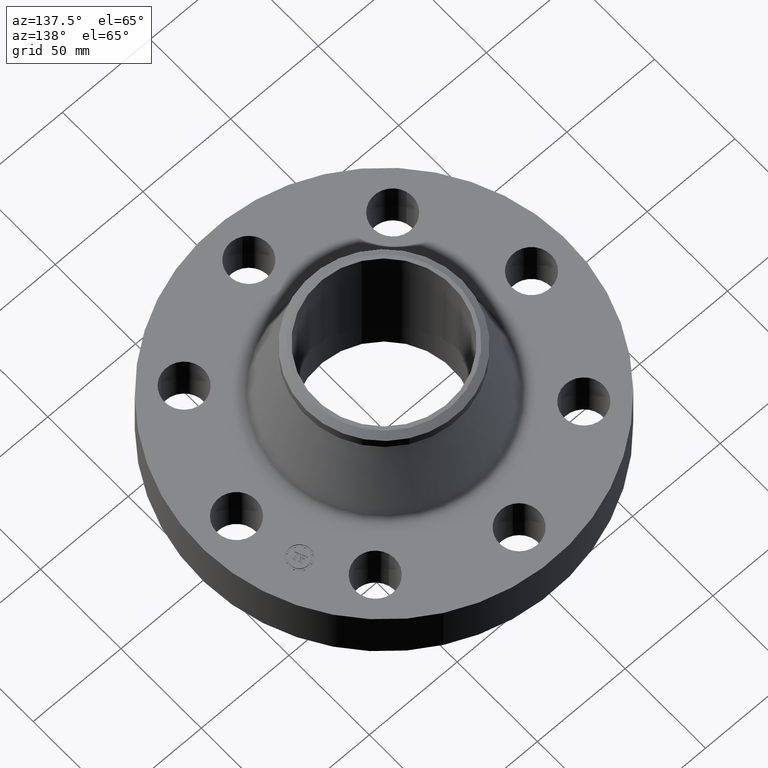
[diagram: clean part render]
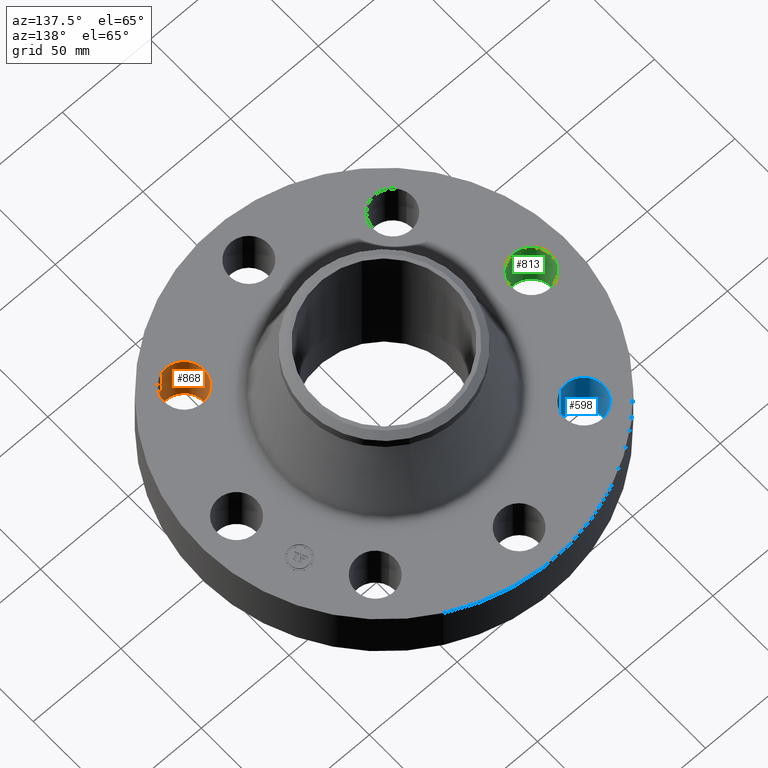
[diagram: same view with three faces highlighted in distinct colors, each labeled with its STEP entity id]
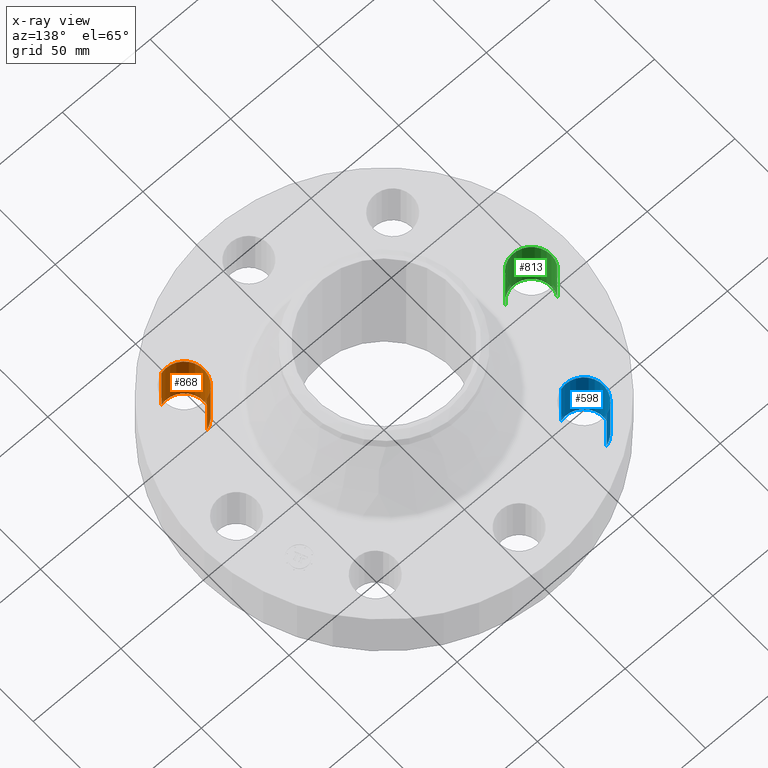
[diagram: x-ray of the same camera — body ghosted, the three highlighted faces saturated]
A machine part, auxiliary view with three faces highlighted in distinct colors.
The next image is the same camera in x-ray (body ghosted, the three faces saturated) — at least one of them is partly hidden behind the body in this view.
Their STEP definitions:

[orange] entity #868 — the highlighted cylindrical surface (edge-blend (fillet) strip) has radius 11.176 mm, axis along (0, -0, -1).
#452=AXIS2_PLACEMENT_3D('Circle Axis2P3D',#450,#451,$) ;
#829=AXIS2_PLACEMENT_3D('Cylinder Axis2P3D',#826,#827,#828) ;
#859=AXIS2_PLACEMENT_3D('Circle Axis2P3D',#857,#858,$) ;
#445=CARTESIAN_POINT('Vertex',(2.21664605203,-1.91832160854,0.)) ;
#447=CARTESIAN_POINT('Vertex',(2.46440083944,-2.76272528293,0.)) ;
#450=CARTESIAN_POINT('Axis2P3D Location',(2.34052344574,-2.34052344574,0.)) ;
#826=CARTESIAN_POINT('Axis2P3D Location',(2.34052344574,-2.34052344574,1.24606299213)) ;
#831=CARTESIAN_POINT('Line Origine',(2.21664605203,-1.91832160854,0.625000000003)) ;
#835=CARTESIAN_POINT('Vertex',(2.21664605203,-1.91832160854,1.25000000001)) ;
#838=CARTESIAN_POINT('Line Origine',(2.46440083944,-2.76272528293,0.625000000003)) ;
#842=CARTESIAN_POINT('Vertex',(2.46440083944,-2.76272528293,1.25000000001)) ;
#857=CARTESIAN_POINT('Axis2P3D Location',(2.34052344574,-2.34052344574,1.25000000001)) ;
#451=DIRECTION('Axis2P3D Direction',(0.,0.,-0.0393700787402)) ;
#827=DIRECTION('Axis2P3D Direction',(0.,-0.,-0.0393700787402)) ;
#828=DIRECTION('Axis2P3D XDirection',(0.0110842335096,-0.0377775444876,0.)) ;
#832=DIRECTION('Vector Direction',(0.,0.,-0.0393700787402)) ;
#839=DIRECTION('Vector Direction',(0.,0.,-0.0393700787402)) ;
#858=DIRECTION('Axis2P3D Direction',(0.,-0.,-0.0393700787402)) ;
#833=VECTOR('Line Direction',#832,0.0393700787402) ;
#840=VECTOR('Line Direction',#839,0.0393700787402) ;
#863=ORIENTED_EDGE('',*,*,#844,.F.) ;
#864=ORIENTED_EDGE('',*,*,#454,.T.) ;
#865=ORIENTED_EDGE('',*,*,#837,.T.) ;
#866=ORIENTED_EDGE('',*,*,#861,.F.) ;
#868=ADVANCED_FACE('PartBody',(#867),#830,.F.) ;
#453=CIRCLE('generated circle',#452,0.440000000002) ;
#860=CIRCLE('generated circle',#859,0.440000000002) ;
#830=CYLINDRICAL_SURFACE('generated cylinder',#829,0.440000000002) ;
#454=EDGE_CURVE('',#448,#446,#453,.T.) ;
#837=EDGE_CURVE('',#446,#836,#834,.F.) ;
#844=EDGE_CURVE('',#448,#843,#841,.F.) ;
#861=EDGE_CURVE('',#843,#836,#860,.T.) ;
#862=EDGE_LOOP('',(#863,#864,#865,#866)) ;
#867=FACE_OUTER_BOUND('',#862,.T.) ;
#834=LINE('Line',#831,#833) ;
#841=LINE('Line',#838,#840) ;
#446=VERTEX_POINT('',#445) ;
#448=VERTEX_POINT('',#447) ;
#836=VERTEX_POINT('',#835) ;
#843=VERTEX_POINT('',#842) ;

[blue] entity #598 — the highlighted cylindrical surface (edge-blend (fillet) strip) has radius 11.176 mm, axis along (0, 0, -1).
#515=AXIS2_PLACEMENT_3D('Circle Axis2P3D',#513,#514,$) ;
#571=AXIS2_PLACEMENT_3D('Cylinder Axis2P3D',#568,#569,#570) ;
#589=AXIS2_PLACEMENT_3D('Circle Axis2P3D',#587,#588,$) ;
#513=CARTESIAN_POINT('Axis2P3D Location',(-2.34052344574,2.34052344574,0.)) ;
#517=CARTESIAN_POINT('Vertex',(-2.21664605203,1.91832160854,0.)) ;
#519=CARTESIAN_POINT('Vertex',(-2.46440083944,2.76272528293,0.)) ;
#568=CARTESIAN_POINT('Axis2P3D Location',(-2.34052344574,2.34052344574,1.24606299213)) ;
#573=CARTESIAN_POINT('Line Origine',(-2.21664605203,1.91832160854,0.625000000003)) ;
#577=CARTESIAN_POINT('Vertex',(-2.21664605203,1.91832160854,1.25000000001)) ;
#580=CARTESIAN_POINT('Line Origine',(-2.46440083944,2.76272528293,0.625000000003)) ;
#584=CARTESIAN_POINT('Vertex',(-2.46440083944,2.76272528293,1.25000000001)) ;
#587=CARTESIAN_POINT('Axis2P3D Location',(-2.34052344574,2.34052344574,1.25000000001)) ;
#514=DIRECTION('Axis2P3D Direction',(0.,0.,-0.0393700787402)) ;
#569=DIRECTION('Axis2P3D Direction',(0.,0.,-0.0393700787402)) ;
#570=DIRECTION('Axis2P3D XDirection',(-0.0110842335096,0.0377775444876,0.)) ;
#574=DIRECTION('Vector Direction',(0.,0.,-0.0393700787402)) ;
#581=DIRECTION('Vector Direction',(0.,0.,-0.0393700787402)) ;
#588=DIRECTION('Axis2P3D Direction',(0.,0.,-0.0393700787402)) ;
#575=VECTOR('Line Direction',#574,0.0393700787402) ;
#582=VECTOR('Line Direction',#581,0.0393700787402) ;
#593=ORIENTED_EDGE('',*,*,#579,.F.) ;
#594=ORIENTED_EDGE('',*,*,#521,.T.) ;
#595=ORIENTED_EDGE('',*,*,#586,.T.) ;
#596=ORIENTED_EDGE('',*,*,#591,.F.) ;
#598=ADVANCED_FACE('PartBody',(#597),#572,.F.) ;
#516=CIRCLE('generated circle',#515,0.440000000002) ;
#590=CIRCLE('generated circle',#589,0.440000000002) ;
#572=CYLINDRICAL_SURFACE('generated cylinder',#571,0.440000000002) ;
#521=EDGE_CURVE('',#518,#520,#516,.T.) ;
#579=EDGE_CURVE('',#518,#578,#576,.F.) ;
#586=EDGE_CURVE('',#520,#585,#583,.F.) ;
#591=EDGE_CURVE('',#578,#585,#590,.T.) ;
#592=EDGE_LOOP('',(#593,#594,#595,#596)) ;
#597=FACE_OUTER_BOUND('',#592,.T.) ;
#576=LINE('Line',#573,#575) ;
#583=LINE('Line',#580,#582) ;
#518=VERTEX_POINT('',#517) ;
#520=VERTEX_POINT('',#519) ;
#578=VERTEX_POINT('',#577) ;
#585=VERTEX_POINT('',#584) ;

[green] entity #813 — the highlighted cylindrical surface (edge-blend (fillet) strip) has radius 11.176 mm, axis along (-0, 0, -1).
#497=AXIS2_PLACEMENT_3D('Circle Axis2P3D',#495,#496,$) ;
#786=AXIS2_PLACEMENT_3D('Cylinder Axis2P3D',#783,#784,#785) ;
#804=AXIS2_PLACEMENT_3D('Circle Axis2P3D',#802,#803,$) ;
#495=CARTESIAN_POINT('Axis2P3D Location',(-3.31000000001,-8.39223703654E-016,0.)) ;
#499=CARTESIAN_POINT('Vertex',(-2.92386367278,-0.210947236987,0.)) ;
#501=CARTESIAN_POINT('Vertex',(-3.69613632725,0.210947236987,0.)) ;
#783=CARTESIAN_POINT('Axis2P3D Location',(-3.31000000001,-4.05358090519E-016,1.24606299213)) ;
#788=CARTESIAN_POINT('Line Origine',(-2.92386367278,-0.210947236987,0.625000000003)) ;
#792=CARTESIAN_POINT('Vertex',(-2.92386367278,-0.210947236987,1.25000000001)) ;
#795=CARTESIAN_POINT('Line Origine',(-3.69613632725,0.210947236987,0.625000000003)) ;
#799=CARTESIAN_POINT('Vertex',(-3.69613632725,0.210947236987,1.25000000001)) ;
#802=CARTESIAN_POINT('Axis2P3D Location',(-3.31000000001,-4.05358090519E-016,1.25000000001)) ;
#496=DIRECTION('Axis2P3D Direction',(0.,0.,-0.0393700787402)) ;
#784=DIRECTION('Axis2P3D Direction',(-0.,0.,-0.0393700787402)) ;
#785=DIRECTION('Axis2P3D XDirection',(-0.0345504945626,0.0188750212049,0.)) ;
#789=DIRECTION('Vector Direction',(0.,0.,-0.0393700787402)) ;
#796=DIRECTION('Vector Direction',(0.,0.,-0.0393700787402)) ;
#803=DIRECTION('Axis2P3D Direction',(-0.,0.,-0.0393700787402)) ;
#790=VECTOR('Line Direction',#789,0.0393700787402) ;
#797=VECTOR('Line Direction',#796,0.0393700787402) ;
#808=ORIENTED_EDGE('',*,*,#794,.F.) ;
#809=ORIENTED_EDGE('',*,*,#503,.T.) ;
#810=ORIENTED_EDGE('',*,*,#801,.T.) ;
#811=ORIENTED_EDGE('',*,*,#806,.F.) ;
#813=ADVANCED_FACE('PartBody',(#812),#787,.F.) ;
#498=CIRCLE('generated circle',#497,0.440000000002) ;
#805=CIRCLE('generated circle',#804,0.440000000002) ;
#787=CYLINDRICAL_SURFACE('generated cylinder',#786,0.440000000002) ;
#503=EDGE_CURVE('',#500,#502,#498,.T.) ;
#794=EDGE_CURVE('',#500,#793,#791,.F.) ;
#801=EDGE_CURVE('',#502,#800,#798,.F.) ;
#806=EDGE_CURVE('',#793,#800,#805,.T.) ;
#807=EDGE_LOOP('',(#808,#809,#810,#811)) ;
#812=FACE_OUTER_BOUND('',#807,.T.) ;
#791=LINE('Line',#788,#790) ;
#798=LINE('Line',#795,#797) ;
#500=VERTEX_POINT('',#499) ;
#502=VERTEX_POINT('',#501) ;
#793=VERTEX_POINT('',#792) ;
#800=VERTEX_POINT('',#799) ;